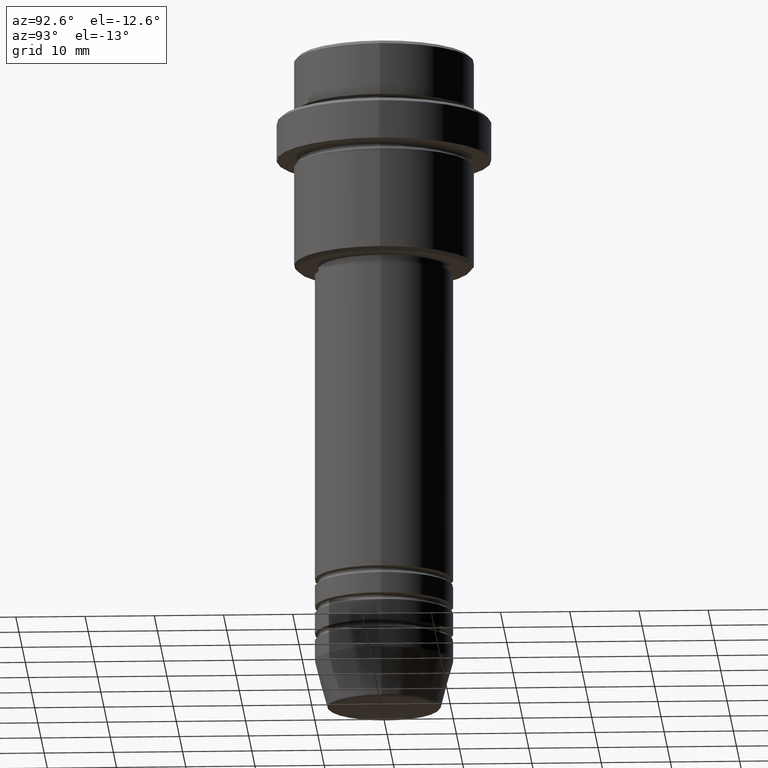
[diagram: clean part render]
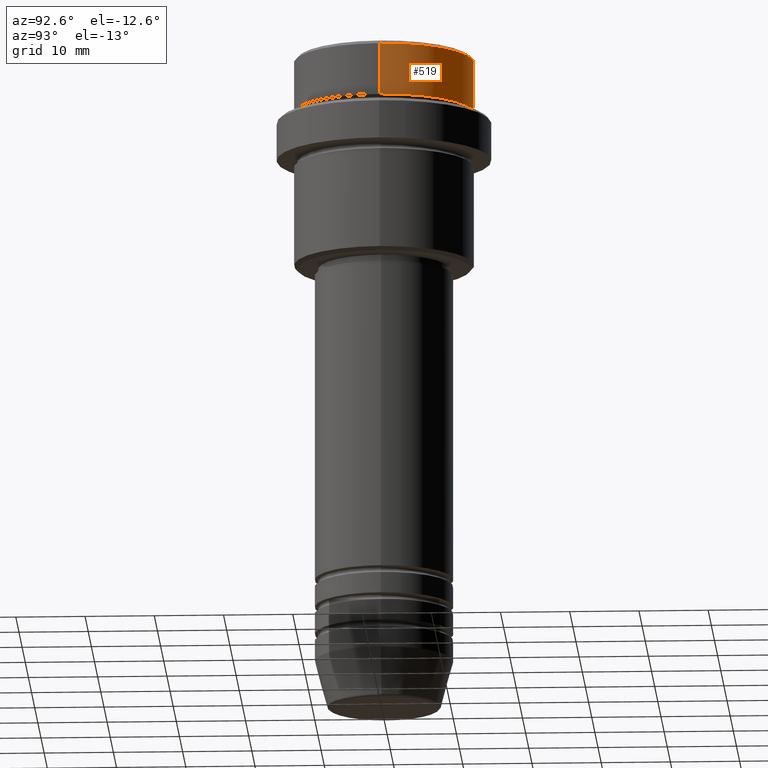
[diagram: same view with one face highlighted and labeled with its STEP entity id]
A machine part, auxiliary view. The second image highlights one B-rep face of the part: STEP entity #519.
In plain terms, the highlighted cylindrical surface (partial cylindrical patch) has radius 13 mm, axis along (-0, -0, 1).
Its self-contained STEP definition (entity closure, byte-faithful):
#35 = CARTESIAN_POINT ( 'NONE',  ( 0.000000000000000000, 0.000000000000000000, 0.000000000000000000 ) ) ;
#40 = VERTEX_POINT ( 'NONE', #41 ) ;
#41 = CARTESIAN_POINT ( 'NONE',  ( 12.99999999999999822, 0.000000000000000000, -0.5000000000000038858 ) ) ;
#157 = VERTEX_POINT ( 'NONE', #934 ) ;
#173 = CARTESIAN_POINT ( 'NONE',  ( 12.99999999999999822, 0.000000000000000000, 0.000000000000000000 ) ) ;
#215 = DIRECTION ( 'NONE',  ( 1.000000000000000000, 0.000000000000000000, 0.000000000000000000 ) ) ;
#229 = DIRECTION ( 'NONE',  ( -0.000000000000000000, -0.000000000000000000, 1.000000000000000000 ) ) ;
#241 = AXIS2_PLACEMENT_3D ( 'NONE', #618, #653, #725 ) ;
#258 = ORIENTED_EDGE ( 'NONE', *, *, #1027, .T. ) ;
#303 = VERTEX_POINT ( 'NONE', #436 ) ;
#316 = LINE ( 'NONE', #539, #1273 ) ;
#327 = EDGE_LOOP ( 'NONE', ( #258, #1338, #1081, #945 ) ) ;
#353 = CIRCLE ( 'NONE', #661, 12.99999999999999822 ) ;
#400 = EDGE_CURVE ( 'NONE', #157, #1373, #316, .T. ) ;
#436 = CARTESIAN_POINT ( 'NONE',  ( 12.99999999999999822, 0.000000000000000000, -7.999999999999998224 ) ) ;
#519 = ADVANCED_FACE ( 'NONE', ( #1342 ), #1236, .T. ) ;
#539 = CARTESIAN_POINT ( 'NONE',  ( -12.99999999999999822, 1.592040838891558898E-15, 0.000000000000000000 ) ) ;
#548 = VECTOR ( 'NONE', #717, 1000.000000000000000 ) ;
#568 = DIRECTION ( 'NONE',  ( 1.000000000000000000, 0.000000000000000000, 0.000000000000000000 ) ) ;
#618 = CARTESIAN_POINT ( 'NONE',  ( 0.000000000000000000, 0.000000000000000000, -0.5000000000000038858 ) ) ;
#653 = DIRECTION ( 'NONE',  ( 0.000000000000000000, 0.000000000000000000, -1.000000000000000000 ) ) ;
#661 = AXIS2_PLACEMENT_3D ( 'NONE', #1213, #229, #215 ) ;
#669 = EDGE_CURVE ( 'NONE', #303, #40, #946, .T. ) ;
#717 = DIRECTION ( 'NONE',  ( -0.000000000000000000, -0.000000000000000000, 1.000000000000000000 ) ) ;
#725 = DIRECTION ( 'NONE',  ( 1.000000000000000000, 0.000000000000000000, 0.000000000000000000 ) ) ;
#764 = DIRECTION ( 'NONE',  ( -0.000000000000000000, -0.000000000000000000, 1.000000000000000000 ) ) ;
#934 = CARTESIAN_POINT ( 'NONE',  ( -12.99999999999999822, 1.592040838891558898E-15, -7.999999999999998224 ) ) ;
#945 = ORIENTED_EDGE ( 'NONE', *, *, #669, .F. ) ;
#946 = LINE ( 'NONE', #173, #548 ) ;
#1014 = CIRCLE ( 'NONE', #241, 12.99999999999999822 ) ;
#1027 = EDGE_CURVE ( 'NONE', #303, #157, #353, .T. ) ;
#1081 = ORIENTED_EDGE ( 'NONE', *, *, #1122, .T. ) ;
#1122 = EDGE_CURVE ( 'NONE', #1373, #40, #1014, .T. ) ;
#1170 = CARTESIAN_POINT ( 'NONE',  ( -12.99999999999999822, 1.592040838891558898E-15, -0.5000000000000038858 ) ) ;
#1213 = CARTESIAN_POINT ( 'NONE',  ( 0.000000000000000000, 0.000000000000000000, -7.999999999999998224 ) ) ;
#1236 = CYLINDRICAL_SURFACE ( 'NONE', #1358, 12.99999999999999822 ) ;
#1243 = DIRECTION ( 'NONE',  ( -0.000000000000000000, -0.000000000000000000, 1.000000000000000000 ) ) ;
#1273 = VECTOR ( 'NONE', #764, 1000.000000000000000 ) ;
#1338 = ORIENTED_EDGE ( 'NONE', *, *, #400, .T. ) ;
#1342 = FACE_OUTER_BOUND ( 'NONE', #327, .T. ) ;
#1358 = AXIS2_PLACEMENT_3D ( 'NONE', #35, #1243, #568 ) ;
#1373 = VERTEX_POINT ( 'NONE', #1170 ) ;